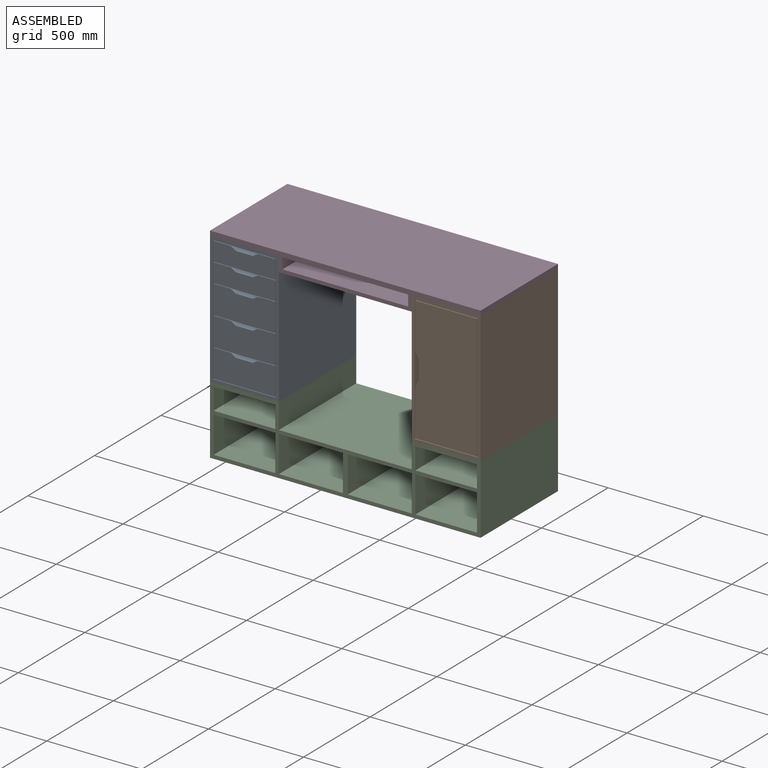
[diagram: assembled view]
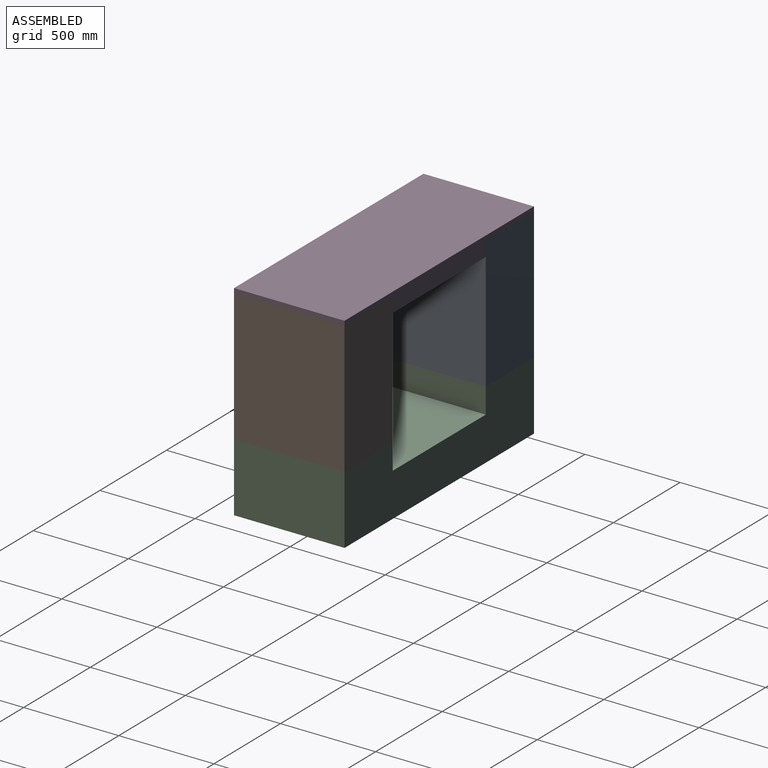
[diagram: assembled view, second angle]
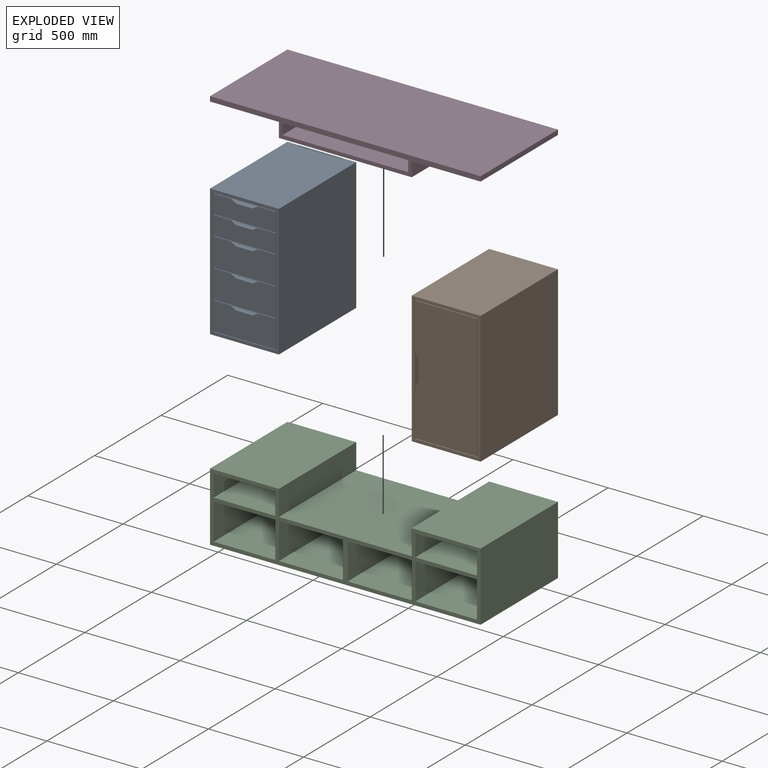
[diagram: exploded view]
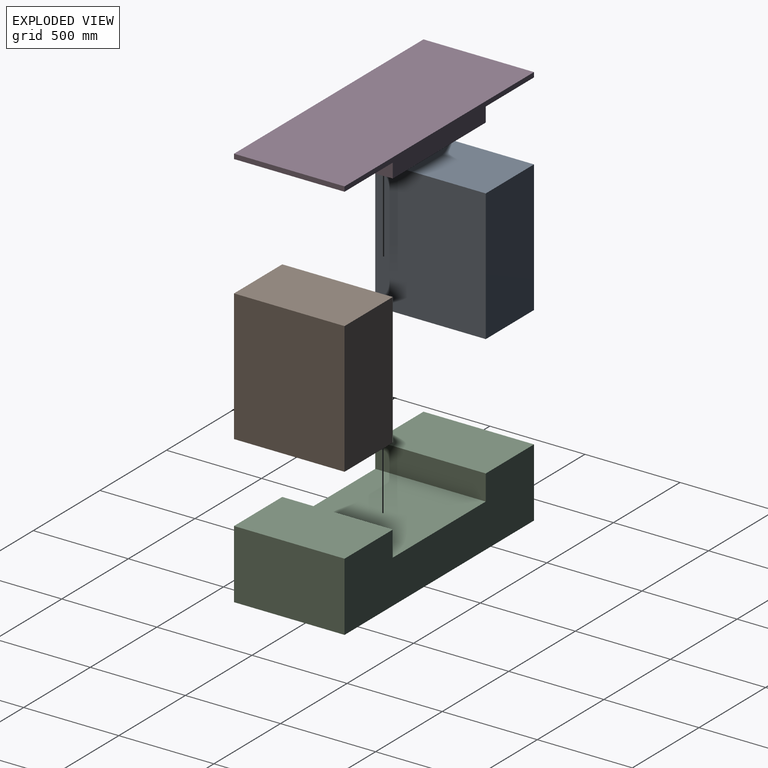
[diagram: exploded view, second angle]
ASSEMBLY  parts=4 mates=3
PART A: 61 faces, bbox 362x581x692.2 mm
  f0: plane 692.15x361.95mm, normal (0,-1,0), area 32459.6mm2, adj f5,f7,f8,f9,f10,f52,f53,f59
  f1: plane 325.12x99.06mm, normal (0,-1,0), area 30284.3mm2, adj f20,f22,f23,f29,f42,f54,f55,f56
  f2: plane 325.12x149.86mm, normal (0,-1,0), area 46800.4mm2, adj f14,f16,f18,f27,f37,f38,f48,f49
  f3: plane 325.12x99.06mm, normal (0,-1,0), area 30284.3mm2, adj f17,f19,f21,f28,f39,f50,f51,f58
  f4: plane 325.12x149.86mm, normal (0,-1,0), area 46800.4mm2, adj f13,f15,f25,f31,f36,f46,f47,f57
  f5: plane 565.15x330.2mm, normal (0,0,-1), area 90645mm2, adj f0,f6,f22,f29,f43,f52,f59
  f6: plane 152.4x19.05mm, normal (0,-1,0), area 2298.4mm2, adj f5,f22,f23,f29
  f7: plane 692.15x581.03mm, normal (-1,0,0), area 402156.5mm2, adj f0,f8,f10,f12
  f8: plane 581.03x361.95mm, normal (0,0,-1), area 210302mm2, adj f0,f7,f9,f12
  f9: plane 692.15x581.03mm, normal (1,0,0), area 402156.5mm2, adj f0,f8,f10,f12
  f10: plane 581.03x361.95mm, normal (0,0,1), area 210302mm2, adj f0,f7,f9,f12
  f11: plane 325.12x147.32mm, normal (0,-1,0), area 45974.6mm2, adj f24,f26,f30,f40,f41,f44,f45,f60
  f12: plane 692.15x361.95mm, normal (0,1,0), area 250523.7mm2, adj f7,f8,f9,f10
  f13: plane 565.15x31.75mm, normal (0.51,0,0.86), area 20800.2mm2, adj f4,f14,f31,f32,f36,f43
  f14: plane 565.15x325.12mm, normal (0,0,-1), area 90515.9mm2, adj f2,f13,f15,f32,f43,f48,f49
  f15: plane 565.15x31.75mm, normal (-0.51,0,0.86), area 20800.2mm2, adj f4,f14,f31,f32,f43,f57
  f16: plane 565.15x31.75mm, normal (0.51,0,0.86), area 20800.2mm2, adj f2,f17,f27,f35,f37,f43
  f17: plane 565.15x325.12mm, normal (0,0,-1), area 90515.9mm2, adj f3,f16,f18,f35,f43,f50,f51
  f18: plane 565.15x31.75mm, normal (-0.51,0,0.86), area 20800.2mm2, adj f2,f17,f27,f35,f38,f43
  f19: plane 565.15x31.75mm, normal (0.51,0,0.86), area 20800.2mm2, adj f3,f20,f28,f34,f39,f43
  f20: plane 565.15x325.12mm, normal (0,0,-1), area 90515.9mm2, adj f1,f19,f21,f34,f43,f54,f56
  f21: plane 565.15x31.75mm, normal (-0.51,0,0.86), area 20800.2mm2, adj f3,f20,f28,f34,f43,f58
  f22: plane 565.15x31.75mm, normal (-0.51,0,0.86), area 20800.2mm2, adj f1,f5,f6,f23,f43,f55
  f23: plane 565.15x88.9mm, normal (0,0,1), area 50241.8mm2, adj f1,f6,f22,f29
  f24: plane 565.15x31.75mm, normal (0.51,0,0.86), area 20800.2mm2, adj f11,f25,f30,f33,f40,f43
  f25: plane 565.15x325.12mm, normal (0,0,-1), area 90515.9mm2, adj f4,f24,f26,f33,f43,f46,f47
  f26: plane 565.15x31.75mm, normal (-0.51,0,0.86), area 20800.2mm2, adj f11,f25,f30,f33,f41,f43
  f27: plane 565.15x88.9mm, normal (0,0,1), area 50241.8mm2, adj f2,f16,f18,f35
  f28: plane 565.15x88.9mm, normal (0,0,1), area 50241.8mm2, adj f3,f19,f21,f34
  f29: plane 565.15x31.75mm, normal (0.51,0,0.86), area 20800.2mm2, adj f1,f5,f6,f23,f42,f43
  f30: plane 565.15x88.9mm, normal (0,0,1), area 50241.8mm2, adj f11,f24,f26,f33
  f31: plane 565.15x88.9mm, normal (0,0,1), area 50241.8mm2, adj f4,f13,f15,f32
  f32: plane 152.4x19.05mm, normal (0,-1,0), area 2298.4mm2, adj f13,f14,f15,f31
  f33: plane 152.4x19.05mm, normal (0,-1,0), area 2298.4mm2, adj f24,f25,f26,f30
  f34: plane 152.4x19.05mm, normal (0,-1,0), area 2298.4mm2, adj f19,f20,f21,f28
  f35: plane 152.4x19.05mm, normal (0,-1,0), area 2298.4mm2, adj f16,f17,f18,f27
  f36: plane 90.59x25.4mm, normal (0,0,1), area 2301.1mm2, adj f4,f13,f43,f47
  f37: plane 90.59x25.4mm, normal (0,0,1), area 2301.1mm2, adj f2,f16,f43,f49
  f38: plane 90.59x25.4mm, normal (0,0,1), area 2301.1mm2, adj f2,f18,f43,f48
  f39: plane 90.59x25.4mm, normal (0,0,1), area 2301.1mm2, adj f3,f19,f43,f51
  f40: plane 90.59x25.4mm, normal (0,0,1), area 2301.1mm2, adj f11,f24,f43,f60
  f41: plane 90.59x25.4mm, normal (0,0,1), area 2301.1mm2, adj f11,f26,f43,f44
  f42: plane 90.59x25.4mm, normal (0,0,1), area 2301.1mm2, adj f1,f29,f43,f54
  f43: plane 660.4x330.2mm, normal (0,-1,0), area 6427.9mm2, adj f5,f13,f14,f15,f16,f17,f18,f19
  f44: plane 147.32x25.4mm, normal (1,0,0), area 3741.9mm2, adj f11,f41,f43,f45
  f45: plane 325.12x25.4mm, normal (0,0,-1), area 8258mm2, adj f11,f43,f44,f60
  f46: plane 149.86x25.4mm, normal (1,0,0), area 3806.4mm2, adj f4,f25,f43,f57
  f47: plane 149.86x25.4mm, normal (-1,0,0), area 3806.4mm2, adj f4,f25,f36,f43
  f48: plane 149.86x25.4mm, normal (1,0,0), area 3806.4mm2, adj f2,f14,f38,f43
  f49: plane 149.86x25.4mm, normal (-1,0,0), area 3806.4mm2, adj f2,f14,f37,f43
  f50: plane 99.06x25.4mm, normal (1,0,0), area 2516.1mm2, adj f3,f17,f43,f58
  f51: plane 99.06x25.4mm, normal (-1,0,0), area 2516.1mm2, adj f3,f17,f39,f43
  f52: plane 660.4x25.4mm, normal (1,0,0), area 16774.2mm2, adj f0,f5,f43,f53
  f53: plane 330.2x25.4mm, normal (0,0,1), area 8387.1mm2, adj f0,f43,f52,f59
  f54: plane 99.06x25.4mm, normal (-1,0,0), area 2516.1mm2, adj f1,f20,f42,f43
  f55: plane 90.59x25.4mm, normal (0,0,1), area 2301.1mm2, adj f1,f22,f43,f56
  f56: plane 99.06x25.4mm, normal (1,0,0), area 2516.1mm2, adj f1,f20,f43,f55
  f57: plane 90.59x25.4mm, normal (0,0,1), area 2301.1mm2, adj f4,f15,f43,f46
  f58: plane 90.59x25.4mm, normal (0,0,1), area 2301.1mm2, adj f3,f21,f43,f50
  f59: plane 660.4x25.4mm, normal (-1,0,0), area 16774.2mm2, adj f0,f5,f43,f53
  f60: plane 147.32x25.4mm, normal (-1,0,0), area 3741.9mm2, adj f11,f40,f43,f45
PART B: 20 faces, bbox 362x581x692.2 mm
  f0: plane 565.15x241.94mm, normal (-1,0,0), area 136729.6mm2, adj f1,f12,f16,f19
  f1: plane 655.32x325.12mm, normal (0,-1,0), area 210517.3mm2, adj f0,f13,f14,f15,f16,f17,f18,f19
  f2: plane 692.15x581.03mm, normal (-1,0,0), area 402156.5mm2, adj f3,f5,f6,f7
  f3: plane 581.03x361.95mm, normal (0,0,-1), area 210302mm2, adj f2,f4,f6,f7
  f4: plane 692.15x581.03mm, normal (1,0,0), area 402156.5mm2, adj f3,f5,f6,f7
  f5: plane 581.03x361.95mm, normal (0,0,1), area 210302mm2, adj f2,f4,f6,f7
  f6: plane 692.15x361.95mm, normal (0,-1,0), area 32459.6mm2, adj f2,f3,f4,f5,f8,f9,f10,f11
  f7: plane 692.15x361.95mm, normal (0,1,0), area 250523.7mm2, adj f2,f3,f4,f5
  f8: plane 660.4x565.15mm, normal (1,0,0), area 373225.1mm2, adj f6,f9,f11,f12
  f9: plane 565.15x330.2mm, normal (0,0,1), area 186612.5mm2, adj f6,f8,f10,f12
  f10: plane 660.4x565.15mm, normal (-1,0,0), area 373225.1mm2, adj f6,f9,f11,f12
  f11: plane 565.15x330.2mm, normal (0,0,-1), area 186612.5mm2, adj f6,f8,f10,f12
  f12: plane 660.4x330.2mm, normal (0,-1,0), area 7546.8mm2, adj f0,f8,f9,f10,f11,f13,f14,f15
  f13: plane 565.15x248.29mm, normal (-1,0,0), area 140318.3mm2, adj f1,f12,f14,f17
  f14: plane 565.15x325.12mm, normal (0,0,-1), area 183741.6mm2, adj f1,f12,f13,f15
  f15: plane 655.32x565.15mm, normal (1,0,0), area 370354.1mm2, adj f1,f12,f14,f16
  f16: plane 565.15x325.12mm, normal (0,0,1), area 183741.6mm2, adj f0,f1,f12,f15
  f17: plane 565.15x31.75mm, normal (-0.86,0,0.51), area 20925.6mm2, adj f1,f12,f13,f18
  f18: plane 565.15x101.6mm, normal (-1,0,0), area 57419.2mm2, adj f1,f12,f17,f19
  f19: plane 565.15x31.75mm, normal (-0.86,0,-0.51), area 20925.6mm2, adj f0,f1,f12,f18
PART C: 40 faces, bbox 1422.4x581x362 mm
  f0: plane 1422.4x361.95mm, normal (0,-1,0), area 96048.2mm2, adj f1,f2,f3,f4,f5,f6,f7,f8
  f1: plane 581.03x361.95mm, normal (-1,0,0), area 210302mm2, adj f0,f2,f8,f9
  f2: plane 1422.4x581.03mm, normal (0,0,-1), area 826450mm2, adj f0,f1,f3,f9
  f3: plane 581.03x361.95mm, normal (1,0,0), area 210302mm2, adj f0,f2,f4,f9
  f4: plane 581.03x361.95mm, normal (0,0,1), area 210302mm2, adj f0,f3,f5,f9
  f5: plane 581.03x133.35mm, normal (-1,0,0), area 77479.7mm2, adj f0,f4,f6,f9
  f6: plane 698.5x581.03mm, normal (0,0,1), area 405846mm2, adj f0,f5,f7,f9
  f7: plane 581.03x133.35mm, normal (1,0,0), area 77479.7mm2, adj f0,f6,f8,f9
  f8: plane 581.03x361.95mm, normal (0,0,1), area 210302mm2, adj f0,f1,f7,f9
  f9: plane 1422.4x361.95mm, normal (0,1,0), area 421692.7mm2, adj f1,f2,f3,f4,f5,f6,f7,f8
  f10: plane 565.15x114.3mm, normal (-1,0,0), area 64596.6mm2, adj f0,f11,f13,f14
  f11: plane 565.15x323.85mm, normal (0,0,-1), area 183023.8mm2, adj f0,f10,f12,f14
  f12: plane 565.15x114.3mm, normal (1,0,0), area 64596.6mm2, adj f0,f11,f13,f14
  f13: plane 565.15x323.85mm, normal (0,0,1), area 183023.8mm2, adj f0,f10,f12,f14
  f14: plane 323.85x114.3mm, normal (0,-1,0), area 37016.1mm2, adj f10,f11,f12,f13
  f15: plane 565.15x190.5mm, normal (1,0,0), area 107661.1mm2, adj f0,f16,f18,f19
  f16: plane 565.15x323.85mm, normal (0,0,1), area 183023.8mm2, adj f0,f15,f17,f19
  f17: plane 565.15x190.5mm, normal (-1,0,0), area 107661.1mm2, adj f0,f16,f18,f19
  f18: plane 565.15x323.85mm, normal (0,0,-1), area 183023.8mm2, adj f0,f15,f17,f19
  f19: plane 323.85x190.5mm, normal (0,-1,0), area 61693.4mm2, adj f15,f16,f17,f18
  f20: plane 565.15x190.5mm, normal (1,0,0), area 107661.1mm2, adj f0,f21,f23,f24
  f21: plane 565.15x336.55mm, normal (0,0,1), area 190201.2mm2, adj f0,f20,f22,f24
  f22: plane 565.15x190.5mm, normal (-1,0,0), area 107661.1mm2, adj f0,f21,f23,f24
  f23: plane 565.15x336.55mm, normal (0,0,-1), area 190201.2mm2, adj f0,f20,f22,f24
  f24: plane 336.55x190.5mm, normal (0,-1,0), area 64112.8mm2, adj f20,f21,f22,f23
  f25: plane 565.15x190.5mm, normal (-1,0,0), area 107661.1mm2, adj f0,f26,f28,f29
  f26: plane 565.15x336.55mm, normal (0,0,-1), area 190201.2mm2, adj f0,f25,f27,f29
  f27: plane 565.15x190.5mm, normal (1,0,0), area 107661.1mm2, adj f0,f26,f28,f29
  f28: plane 565.15x336.55mm, normal (0,0,1), area 190201.2mm2, adj f0,f25,f27,f29
  f29: plane 336.55x190.5mm, normal (0,-1,0), area 64112.8mm2, adj f25,f26,f27,f28
  f30: plane 565.15x190.5mm, normal (1,0,0), area 107661.1mm2, adj f0,f31,f33,f34
  f31: plane 565.15x323.85mm, normal (0,0,1), area 183023.8mm2, adj f0,f30,f32,f34
  f32: plane 565.15x190.5mm, normal (-1,0,0), area 107661.1mm2, adj f0,f31,f33,f34
  f33: plane 565.15x323.85mm, normal (0,0,-1), area 183023.8mm2, adj f0,f30,f32,f34
  f34: plane 323.85x190.5mm, normal (0,-1,0), area 61693.4mm2, adj f30,f31,f32,f33
  f35: plane 565.15x323.85mm, normal (0,0,-1), area 183023.8mm2, adj f0,f36,f38,f39
  f36: plane 565.15x114.3mm, normal (1,0,0), area 64596.6mm2, adj f0,f35,f37,f39
  f37: plane 565.15x323.85mm, normal (0,0,1), area 183023.8mm2, adj f0,f36,f38,f39
  f38: plane 565.15x114.3mm, normal (-1,0,0), area 64596.6mm2, adj f0,f35,f37,f39
  f39: plane 323.85x114.3mm, normal (0,-1,0), area 37016.1mm2, adj f35,f36,f37,f38
PART D: 15 faces, bbox 1422.4x581x101.6 mm
  f0: plane 581.03x25.4mm, normal (-1,0,0), area 14758mm2, adj f1,f7,f8,f9
  f1: plane 581.03x361.95mm, normal (0,0,-1), area 210302mm2, adj f0,f2,f8,f9
  f2: plane 581.03x76.2mm, normal (-1,0,0), area 44274.1mm2, adj f1,f3,f8,f9
  f3: plane 698.5x581.03mm, normal (0,0,-1), area 405846mm2, adj f2,f4,f8,f9
  f4: plane 581.03x76.2mm, normal (1,0,0), area 44274.1mm2, adj f3,f5,f8,f9
  f5: plane 581.03x361.95mm, normal (0,0,-1), area 210302mm2, adj f4,f6,f8,f9
  f6: plane 581.03x25.4mm, normal (1,0,0), area 14758mm2, adj f5,f7,f8,f9
  f7: plane 1422.4x581.03mm, normal (0,0,1), area 826450mm2, adj f0,f6,f8,f9
  f8: plane 1422.4x101.6mm, normal (0,-1,0), area 51612.8mm2, adj f0,f1,f2,f3,f4,f5,f6,f7
  f9: plane 1422.4x101.6mm, normal (0,1,0), area 89354.7mm2, adj f0,f1,f2,f3,f4,f5,f6,f7
  f10: plane 565.15x57.15mm, normal (1,0,0), area 32298.3mm2, adj f8,f11,f13,f14
  f11: plane 660.4x565.15mm, normal (0,0,1), area 373225.1mm2, adj f8,f10,f12,f14
  f12: plane 565.15x57.15mm, normal (-1,0,0), area 32298.3mm2, adj f8,f11,f13,f14
  f13: plane 660.4x565.15mm, normal (0,0,-1), area 373225.1mm2, adj f8,f10,f12,f14
  f14: plane 660.4x57.15mm, normal (0,-1,0), area 37741.9mm2, adj f10,f11,f12,f13
PLACE A t=(11.32,290.51,902.01)mm
PLACE B t=(1071.77,290.51,902.01)mm
PLACE C t=(11.32,290.51,540.06)mm
PLACE D t=(11.32,290.51,1594.16)mm
MATE fastened C.f4 <-> B.f3  axis (0,0,1) through (1252.75,0,902.01)mm
MATE fastened A.f10 <-> D.f1  axis (0,0,1) through (192.3,0,1594.16)mm
MATE fastened C.f8 <-> A.f8  axis (0,0,1) through (192.3,0,902.01)mm
